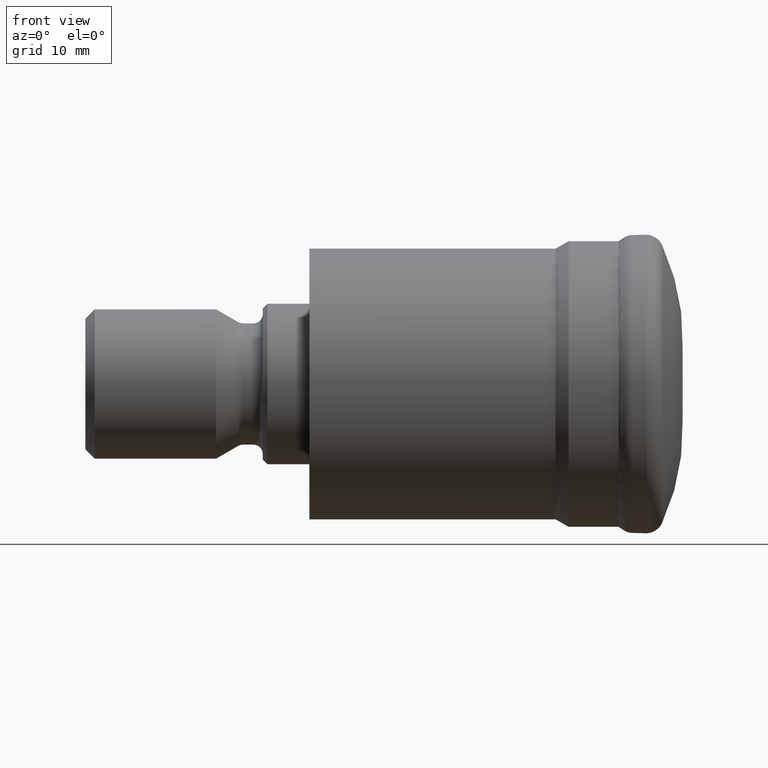
[diagram: clean part render]
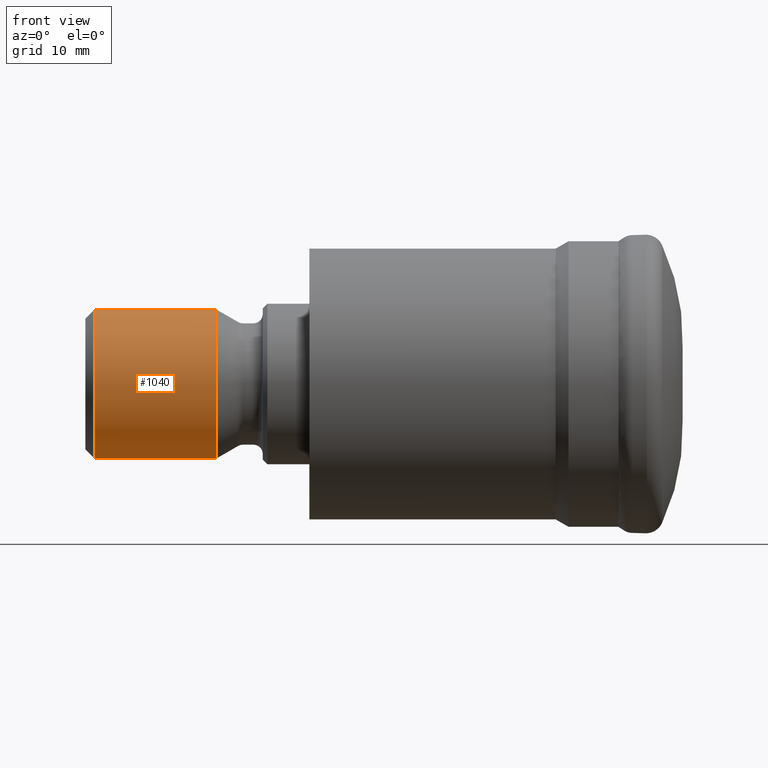
[diagram: same view with one face highlighted and labeled with its STEP entity id]
A machine part, front view. The second image highlights one B-rep face of the part: STEP entity #1040.
In plain terms, the highlighted cylindrical surface (partial cylindrical patch) has radius 8 mm, axis along (1, -0, -0).
Its self-contained STEP definition (entity closure, byte-faithful):
#158 = CIRCLE ( 'NONE', #558, 7.999999999999992900 ) ;
#160 = VECTOR ( 'NONE', #825, 1000.000000000000000 ) ;
#171 = LINE ( 'NONE', #936, #160 ) ;
#174 = CYLINDRICAL_SURFACE ( 'NONE', #438, 7.999999999999992900 ) ;
#193 = FACE_OUTER_BOUND ( 'NONE', #590, .T. ) ;
#206 = ORIENTED_EDGE ( 'NONE', *, *, #550, .F. ) ;
#245 = ORIENTED_EDGE ( 'NONE', *, *, #542, .F. ) ;
#270 = ORIENTED_EDGE ( 'NONE', *, *, #504, .T. ) ;
#272 = ORIENTED_EDGE ( 'NONE', *, *, #494, .T. ) ;
#319 = LINE ( 'NONE', #709, #340 ) ;
#328 = CIRCLE ( 'NONE', #559, 7.999999999999992900 ) ;
#340 = VECTOR ( 'NONE', #1010, 1000.000000000000000 ) ;
#438 = AXIS2_PLACEMENT_3D ( 'NONE', #783, #763, #827 ) ;
#494 = EDGE_CURVE ( 'NONE', #878, #873, #319, .T. ) ;
#504 = EDGE_CURVE ( 'NONE', #853, #878, #328, .T. ) ;
#542 = EDGE_CURVE ( 'NONE', #853, #877, #171, .T. ) ;
#550 = EDGE_CURVE ( 'NONE', #877, #873, #158, .T. ) ;
#558 = AXIS2_PLACEMENT_3D ( 'NONE', #762, #892, #890 ) ;
#559 = AXIS2_PLACEMENT_3D ( 'NONE', #795, #787, #721 ) ;
#590 = EDGE_LOOP ( 'NONE', ( #245, #270, #272, #206 ) ) ;
#709 = CARTESIAN_POINT ( 'NONE',  ( 0.0000000000000000000, 0.0000000000000000000, -7.999999999999992900 ) ) ;
#721 = DIRECTION ( 'NONE',  ( 0.0000000000000000000, 0.0000000000000000000, -1.000000000000000000 ) ) ;
#752 = CARTESIAN_POINT ( 'NONE',  ( -61.85999999999999900, 9.797174393178817800E-016, 7.999999999999992900 ) ) ;
#762 = CARTESIAN_POINT ( 'NONE',  ( -48.85999999999999900, 0.0000000000000000000, 0.0000000000000000000 ) ) ;
#763 = DIRECTION ( 'NONE',  ( 1.000000000000000000, -0.0000000000000000000, -0.0000000000000000000 ) ) ;
#783 = CARTESIAN_POINT ( 'NONE',  ( 0.0000000000000000000, 0.0000000000000000000, 0.0000000000000000000 ) ) ;
#787 = DIRECTION ( 'NONE',  ( 1.000000000000000000, -0.0000000000000000000, -0.0000000000000000000 ) ) ;
#795 = CARTESIAN_POINT ( 'NONE',  ( -61.85999999999999900, 0.0000000000000000000, 0.0000000000000000000 ) ) ;
#808 = CARTESIAN_POINT ( 'NONE',  ( -48.85999999999999900, 0.0000000000000000000, -7.999999999999992900 ) ) ;
#815 = CARTESIAN_POINT ( 'NONE',  ( -48.85999999999999900, 9.797174393178817800E-016, 7.999999999999992900 ) ) ;
#816 = CARTESIAN_POINT ( 'NONE',  ( -61.85999999999999900, 0.0000000000000000000, -7.999999999999992900 ) ) ;
#825 = DIRECTION ( 'NONE',  ( 1.000000000000000000, -0.0000000000000000000, -0.0000000000000000000 ) ) ;
#827 = DIRECTION ( 'NONE',  ( 0.0000000000000000000, 0.0000000000000000000, -1.000000000000000000 ) ) ;
#853 = VERTEX_POINT ( 'NONE', #752 ) ;
#873 = VERTEX_POINT ( 'NONE', #808 ) ;
#877 = VERTEX_POINT ( 'NONE', #815 ) ;
#878 = VERTEX_POINT ( 'NONE', #816 ) ;
#890 = DIRECTION ( 'NONE',  ( 0.0000000000000000000, 0.0000000000000000000, -1.000000000000000000 ) ) ;
#892 = DIRECTION ( 'NONE',  ( 1.000000000000000000, -0.0000000000000000000, -0.0000000000000000000 ) ) ;
#936 = CARTESIAN_POINT ( 'NONE',  ( 0.0000000000000000000, 9.797174393178817800E-016, 7.999999999999992900 ) ) ;
#1010 = DIRECTION ( 'NONE',  ( 1.000000000000000000, -0.0000000000000000000, -0.0000000000000000000 ) ) ;
#1040 = ADVANCED_FACE ( 'NONE', ( #193 ), #174, .T. ) ;